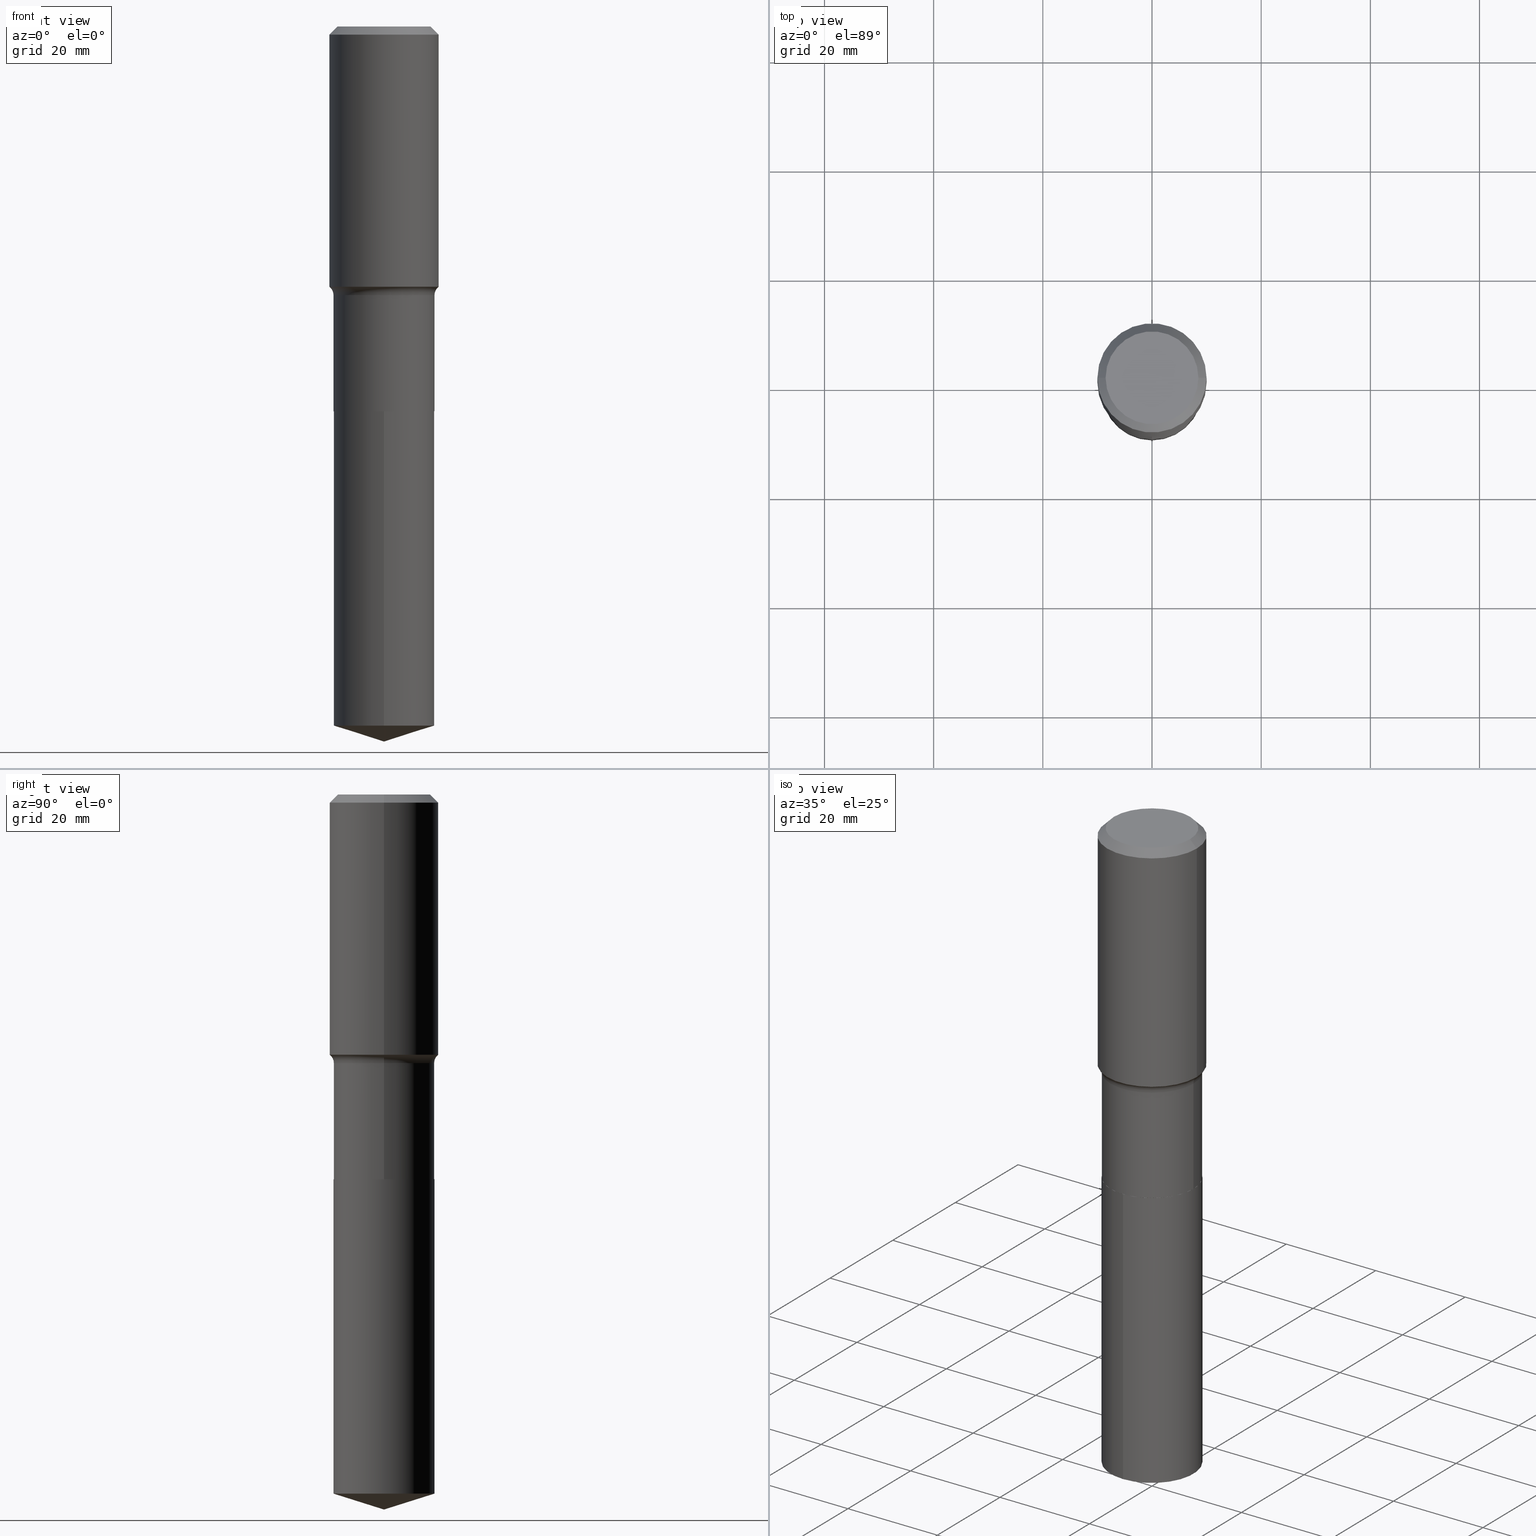
[diagram: canonical four-view strip — front | top / right | iso, engineering-drawing reading convention]
A machine part, canonical four-view strip (front | top / right | iso — engineering-drawing reading convention). The complete STEP part file that produces these views, byte-faithful:
ISO-10303-21;
HEADER;
FILE_DESCRIPTION (( 'STEP AP203' ),
    '1' );
FILE_NAME ('63209.STEP',
    '2024-04-19T15:06:39',
    ( '' ),
    ( '' ),
    'SwSTEP 2.0',
    'SolidWorks 2023',
    '' );
FILE_SCHEMA (( 'CONFIG_CONTROL_DESIGN' ));
ENDSEC;

DATA;
#1 = DIRECTION ( 'NONE',  ( -2.445873502339336509E-29, 3.490901790916456848E-15, 1.000000000000000000 ) ) ;
#2 = LINE ( 'NONE', #379, #159 ) ;
#3 = APPROVAL_PERSON_ORGANIZATION ( #92, #242, #423 ) ;
#4 = AXIS2_PLACEMENT_3D ( 'NONE', #241, #344, #254 ) ;
#5 = CIRCLE ( 'NONE', #356, 0.3641499999999999737 ) ;
#6 = CARTESIAN_POINT ( 'NONE',  ( -0.3346450000000000258, 2.439908260507010921E-15, 4.096137381431419798E-18 ) ) ;
#7 = FACE_OUTER_BOUND ( 'NONE', #147, .T. ) ;
#8 = ADVANCED_FACE ( 'NONE', ( #302 ), #462, .T. ) ;
#9 = CARTESIAN_POINT ( 'NONE',  ( 6.787643218447464969E-29, -9.690955604093032420E-15, -2.775599999999999845 ) ) ;
#10 = CARTESIAN_POINT ( 'NONE',  ( 6.787643218447464969E-29, -9.690955604093032420E-15, -2.775599999999999845 ) ) ;
#11 = EDGE_CURVE ( 'NONE', #316, #181, #106, .T. ) ;
#12 = LOCAL_TIME ( 11, 6, 39.00000000000000000, #411 ) ;
#13 = ORIENTED_EDGE ( 'NONE', *, *, #386, .T. ) ;
#14 = DIRECTION ( 'NONE',  ( -2.445873502339336509E-29, 3.490901790916456848E-15, 1.000000000000000000 ) ) ;
#15 = DIRECTION ( 'NONE',  ( 1.000000000000000000, -6.982962677686267499E-15, 0.000000000000000000 ) ) ;
#16 = EDGE_CURVE ( 'NONE', #447, #138, #183, .T. ) ;
#17 = CARTESIAN_POINT ( 'NONE',  ( -0.3641500000000000847, -5.640583550847350202E-15, -2.775099999999999678 ) ) ;
#18 = CARTESIAN_POINT ( 'NONE',  ( 1.444171603492640671E-30, -2.061894304653831493E-16, -0.05905500000000033639 ) ) ;
#19 = DIRECTION ( 'NONE',  ( -1.000000000000000000, 6.982962677686265922E-15, -4.876176775795935793E-29 ) ) ;
#20 = CARTESIAN_POINT ( 'NONE',  ( 4.739563093267412621E-29, -6.766839982811899557E-15, -1.938099999999999712 ) ) ;
#21 = ORIENTED_EDGE ( 'NONE', *, *, #435, .F. ) ;
#22 = CIRCLE ( 'NONE', #69, 0.3937000000000000499 ) ;
#23 = ORIENTED_EDGE ( 'NONE', *, *, #413, .T. ) ;
#24 = APPLICATION_PROTOCOL_DEFINITION ( 'international standard', 'config_control_design', 1994, #118 ) ;
#25 = CARTESIAN_POINT ( 'NONE',  ( 6.786420484044372168E-29, -9.689209863423613283E-15, -2.775099999999999678 ) ) ;
#26 = ORIENTED_EDGE ( 'NONE', *, *, #193, .F. ) ;
#27 = PERSON_AND_ORGANIZATION_ROLE ( 'creator' ) ;
#28 = VERTEX_POINT ( 'NONE', #291 ) ;
#29 = CIRCLE ( 'NONE', #246, 0.3641500000000000847 ) ;
#30 = APPROVAL_PERSON_ORGANIZATION ( #73, #370, #402 ) ;
#31 = SHAPE_DEFINITION_REPRESENTATION ( #433, #198 ) ;
#32 = ORIENTED_EDGE ( 'NONE', *, *, #264, .T. ) ;
#33 = CC_DESIGN_PERSON_AND_ORGANIZATION_ASSIGNMENT ( #145, #27, ( #247 ) ) ;
#34 = DIRECTION ( 'NONE',  ( 1.000000000000000000, -6.982962677686265922E-15, 4.883557194083112901E-29 ) ) ;
#35 = ORIENTED_EDGE ( 'NONE', *, *, #95, .T. ) ;
#36 = EDGE_LOOP ( 'NONE', ( #270, #122 ) ) ;
#37 = AXIS2_PLACEMENT_3D ( 'NONE', #155, #39, #197 ) ;
#38 = CARTESIAN_POINT ( 'NONE',  ( 4.590077173864083057E-29, -6.553413707777653647E-15, -1.876972285336354629 ) ) ;
#39 = DIRECTION ( 'NONE',  ( 2.445468806185136597E-29, -3.491481338843145583E-15, -1.000000000000000000 ) ) ;
#40 = DIRECTION ( 'NONE',  ( -6.982962677686267499E-15, -1.000000000000000000, 3.000794171263779658E-15 ) ) ;
#41 = AXIS2_PLACEMENT_3D ( 'NONE', #374, #414, #337 ) ;
#42 = TOROIDAL_SURFACE ( 'NONE', #120, 0.4421500000000000985, 0.07800000000000002764 ) ;
#43 = CARTESIAN_POINT ( 'NONE',  ( 6.787643218447464969E-29, -9.690955604093032420E-15, -2.775599999999999845 ) ) ;
#44 = PRODUCT_RELATED_PRODUCT_CATEGORY ( 'detail', '', ( #165 ) ) ;
#45 = CARTESIAN_POINT ( 'NONE',  ( 6.787643218447464969E-29, -9.690955604093032420E-15, -2.775599999999999845 ) ) ;
#46 = DIRECTION ( 'NONE',  ( -2.445468806185136597E-29, 3.491481338843145583E-15, 1.000000000000000000 ) ) ;
#47 = VECTOR ( 'NONE', #89, 39.37007874015748854 ) ;
#48 = AXIS2_PLACEMENT_3D ( 'NONE', #57, #172, #54 ) ;
#49 = AXIS2_PLACEMENT_3D ( 'NONE', #347, #474, #56 ) ;
#50 = DIRECTION ( 'NONE',  ( 2.438088387897960049E-29, -3.491481338843145188E-15, -1.000000000000000000 ) ) ;
#51 = DIRECTION ( 'NONE',  ( 1.000000000000000000, -6.982962677686266711E-15, 4.876176775795935793E-29 ) ) ;
#52 = ORIENTED_EDGE ( 'NONE', *, *, #275, .T. ) ;
#53 = DIRECTION ( 'NONE',  ( -2.445468806185136597E-29, 3.491481338843145583E-15, 1.000000000000000000 ) ) ;
#54 = DIRECTION ( 'NONE',  ( -6.982962677686267499E-15, -1.000000000000000000, 3.000794171263779658E-15 ) ) ;
#55 = EDGE_LOOP ( 'NONE', ( #487, #228, #123, #438 ) ) ;
#56 = DIRECTION ( 'NONE',  ( -6.982962677686265922E-15, -1.000000000000000000, 3.500519750498706404E-15 ) ) ;
#57 = CARTESIAN_POINT ( 'NONE',  ( 6.787643218447464969E-29, -9.690955604093032420E-15, -2.775599999999999845 ) ) ;
#58 = VERTEX_POINT ( 'NONE', #453 ) ;
#59 = DIRECTION ( 'NONE',  ( -2.445468806185136597E-29, 3.491481338843145583E-15, 1.000000000000000000 ) ) ;
#60 = DIRECTION ( 'NONE',  ( 1.000000000000000000, -6.982962677686255667E-15, 0.000000000000000000 ) ) ;
#61 = CC_DESIGN_DATE_AND_TIME_ASSIGNMENT ( #360, #408, ( #292 ) ) ;
#62 = VERTEX_POINT ( 'NONE', #164 ) ;
#63 = COORDINATED_UNIVERSAL_TIME_OFFSET ( 5, 0, .BEHIND. ) ;
#64 = DIRECTION ( 'NONE',  ( -0.7071067811865453523, 2.468850131082234184E-15, -0.7071067811865496822 ) ) ;
#65 = ORIENTED_EDGE ( 'NONE', *, *, #68, .F. ) ;
#66 = COORDINATED_UNIVERSAL_TIME_OFFSET ( 5, 0, .BEHIND. ) ;
#67 = ORIENTED_EDGE ( 'NONE', *, *, #386, .F. ) ;
#68 = EDGE_CURVE ( 'NONE', #440, #186, #109, .T. ) ;
#69 = AXIS2_PLACEMENT_3D ( 'NONE', #18, #284, #93 ) ;
#70 = CALENDAR_DATE ( 2024, 19, 4 ) ;
#71 = CARTESIAN_POINT ( 'NONE',  ( 6.787643218447464969E-29, -9.690955604093032420E-15, -2.775599999999999845 ) ) ;
#72 = DIRECTION ( 'NONE',  ( 1.000000000000000000, -6.982962677686269866E-15, 0.000000000000000000 ) ) ;
#73 = PERSON_AND_ORGANIZATION ( #369, #274 ) ;
#74 = EDGE_CURVE ( 'NONE', #447, #440, #2, .T. ) ;
#75 = DIRECTION ( 'NONE',  ( -0.7071067811864509833, 7.493145998870005484E-15, 0.7071067811866440511 ) ) ;
#76 = LOCAL_TIME ( 11, 6, 39.00000000000000000, #191 ) ;
#77 = CC_DESIGN_DATE_AND_TIME_ASSIGNMENT ( #229, #444, ( #464 ) ) ;
#78 = FACE_OUTER_BOUND ( 'NONE', #221, .T. ) ;
#79 = DIRECTION ( 'NONE',  ( -2.438088387897960049E-29, 3.491481338843145188E-15, 1.000000000000000000 ) ) ;
#80 = DIRECTION ( 'NONE',  ( 0.7071067811864509833, -2.468850131081245741E-15, 0.7071067811866440511 ) ) ;
#81 = DIRECTION ( 'NONE',  ( -2.445873502339336229E-29, 3.490901790916456454E-15, 1.000000000000000000 ) ) ;
#82 = EDGE_CURVE ( 'NONE', #58, #62, #276, .T. ) ;
#83 = CIRCLE ( 'NONE', #353, 0.3641500000000000847 ) ;
#84 = AXIS2_PLACEMENT_3D ( 'NONE', #439, #14, #355 ) ;
#85 = CARTESIAN_POINT ( 'NONE',  ( 0.000000000000000000, 0.000000000000000000, 0.000000000000000000 ) ) ;
#86 = EDGE_LOOP ( 'NONE', ( #479, #401 ) ) ;
#87 = CARTESIAN_POINT ( 'NONE',  ( -0.3937000000000001054, 2.797406750687515181E-15, -1.936584745033357016E-29 ) ) ;
#88 = VECTOR ( 'NONE', #129, 39.37007874015748143 ) ;
#89 = DIRECTION ( 'NONE',  ( -6.659769872151631300E-15, -0.9537169507482265995, 0.3007057995042740073 ) ) ;
#90 = CIRCLE ( 'NONE', #441, 0.3346450000000000258 ) ;
#91 = ORIENTED_EDGE ( 'NONE', *, *, #340, .F. ) ;
#92 = PERSON_AND_ORGANIZATION ( #369, #274 ) ;
#93 = DIRECTION ( 'NONE',  ( 1.000000000000000000, -6.982962677686265922E-15, 0.000000000000000000 ) ) ;
#94 = ORIENTED_EDGE ( 'NONE', *, *, #125, .T. ) ;
#95 = EDGE_CURVE ( 'NONE', #138, #443, #339, .T. ) ;
#96 = ORIENTED_EDGE ( 'NONE', *, *, #476, .T. ) ;
#97 = LOCAL_TIME ( 11, 6, 39.00000000000000000, #66 ) ;
#98 = FACE_OUTER_BOUND ( 'NONE', #466, .T. ) ;
#99 = ORIENTED_EDGE ( 'NONE', *, *, #95, .F. ) ;
#100 = VERTEX_POINT ( 'NONE', #163 ) ;
#101 = APPROVAL_DATE_TIME ( #297, #370 ) ;
#102 = ORIENTED_EDGE ( 'NONE', *, *, #413, .F. ) ;
#103 = CONICAL_SURFACE ( 'NONE', #378, 0.3636500000000000288, 0.7853981633973118326 ) ;
#104 =( GEOMETRIC_REPRESENTATION_CONTEXT ( 3 ) GLOBAL_UNCERTAINTY_ASSIGNED_CONTEXT ( ( #342 ) ) GLOBAL_UNIT_ASSIGNED_CONTEXT ( ( #392, #314, #322 ) ) REPRESENTATION_CONTEXT ( 'NONE', 'WORKASPACE' ) );
#105 = CALENDAR_DATE ( 2024, 19, 4 ) ;
#106 = LINE ( 'NONE', #267, #306 ) ;
#107 = EDGE_CURVE ( 'NONE', #422, #352, #311, .T. ) ;
#108 = DIRECTION ( 'NONE',  ( -2.445873502339336509E-29, 3.490901790916456848E-15, 1.000000000000000000 ) ) ;
#109 = LINE ( 'NONE', #492, #119 ) ;
#110 = CARTESIAN_POINT ( 'NONE',  ( 0.3636500000000000288, -1.223030998183364539E-14, -2.775599999999999845 ) ) ;
#111 = AXIS2_PLACEMENT_3D ( 'NONE', #71, #412, #72 ) ;
#112 = AXIS2_PLACEMENT_3D ( 'NONE', #465, #53, #280 ) ;
#113 = EDGE_CURVE ( 'NONE', #138, #447, #273, .T. ) ;
#114 = FACE_OUTER_BOUND ( 'NONE', #263, .T. ) ;
#115 = DIRECTION ( 'NONE',  ( -2.445468806185136877E-29, 3.491481338843145188E-15, 1.000000000000000000 ) ) ;
#116 = ADVANCED_FACE ( 'NONE', ( #454 ), #278, .T. ) ;
#117 = DIRECTION ( 'NONE',  ( -2.445468806185136597E-29, 3.491481338843145583E-15, 1.000000000000000000 ) ) ;
#118 = APPLICATION_CONTEXT ( 'configuration controlled 3d designs of mechanical parts and assemblies' ) ;
#119 = VECTOR ( 'NONE', #115, 39.37007874015748143 ) ;
#120 = AXIS2_PLACEMENT_3D ( 'NONE', #320, #134, #34 ) ;
#121 = CC_DESIGN_APPROVAL ( #242, ( #464 ) ) ;
#122 = ORIENTED_EDGE ( 'NONE', *, *, #16, .F. ) ;
#123 = ORIENTED_EDGE ( 'NONE', *, *, #82, .T. ) ;
#124 = FACE_OUTER_BOUND ( 'NONE', #86, .T. ) ;
#125 = EDGE_CURVE ( 'NONE', #28, #316, #448, .T. ) ;
#126 = ORIENTED_EDGE ( 'NONE', *, *, #452, .F. ) ;
#127 = DIRECTION ( 'NONE',  ( -2.445468806185136597E-29, 3.491481338843145583E-15, 1.000000000000000000 ) ) ;
#128 = VECTOR ( 'NONE', #80, 39.37007874015748143 ) ;
#129 = DIRECTION ( 'NONE',  ( 0.7071067811865453523, -7.319954787623248157E-15, -0.7071067811865496822 ) ) ;
#130 = AXIS2_PLACEMENT_3D ( 'NONE', #286, #178, #432 ) ;
#131 = CARTESIAN_POINT ( 'NONE',  ( 1.444171603492640671E-30, -2.061894304653831493E-16, -0.05905500000000033639 ) ) ;
#132 = VERTEX_POINT ( 'NONE', #231 ) ;
#133 = CYLINDRICAL_SURFACE ( 'NONE', #112, 0.3641499999999999737 ) ;
#134 = DIRECTION ( 'NONE',  ( -2.445468806185136597E-29, 3.491481338843145583E-15, 1.000000000000000000 ) ) ;
#135 = ORIENTED_EDGE ( 'NONE', *, *, #264, .F. ) ;
#136 = ADVANCED_FACE ( 'NONE', ( #196 ), #103, .T. ) ;
#137 = CARTESIAN_POINT ( 'NONE',  ( 2.587441372270528886E-15, 0.3641499999999824877, -5.042683946029719699 ) ) ;
#138 = VERTEX_POINT ( 'NONE', #110 ) ;
#139 = APPROVAL_STATUS ( 'not_yet_approved' ) ;
#140 = DIRECTION ( 'NONE',  ( -2.445873502339336509E-29, 3.490901790916456848E-15, 1.000000000000000000 ) ) ;
#141 = CONICAL_SURFACE ( 'NONE', #41, 0.3937000000000000499, 0.7853981633974452814 ) ;
#142 = AXIS2_PLACEMENT_3D ( 'NONE', #131, #170, #395 ) ;
#143 = EDGE_LOOP ( 'NONE', ( #323, #279, #67, #404 ) ) ;
#144 = AXIS2_PLACEMENT_3D ( 'NONE', #161, #79, #456 ) ;
#145 = PERSON_AND_ORGANIZATION ( #369, #274 ) ;
#146 = APPLICATION_CONTEXT ( 'configuration controlled 3d designs of mechanical parts and assemblies' ) ;
#147 = EDGE_LOOP ( 'NONE', ( #333, #194, #102 ) ) ;
#148 = ADVANCED_FACE ( 'NONE', ( #271 ), #141, .T. ) ;
#149 = ORIENTED_EDGE ( 'NONE', *, *, #113, .T. ) ;
#150 = APPROVAL_DATE_TIME ( #259, #242 ) ;
#151 = VERTEX_POINT ( 'NONE', #6 ) ;
#152 = EDGE_CURVE ( 'NONE', #352, #62, #204, .T. ) ;
#153 = CC_DESIGN_SECURITY_CLASSIFICATION ( #292, ( #247 ) ) ;
#154 = PERSON_AND_ORGANIZATION_ROLE ( 'design_supplier' ) ;
#155 = CARTESIAN_POINT ( 'NONE',  ( 1.444171603492640671E-30, -2.061894304653831493E-16, -0.05905500000000033639 ) ) ;
#156 = EDGE_CURVE ( 'NONE', #443, #132, #420, .T. ) ;
#157 = CARTESIAN_POINT ( 'NONE',  ( 0.3641499999999999737, -2.542845859079454001E-15, 1.775659772906089967E-29 ) ) ;
#158 = DIRECTION ( 'NONE',  ( 1.000000000000000000, -6.982962677686266711E-15, 4.876176775795935793E-29 ) ) ;
#159 = VECTOR ( 'NONE', #75, 39.37007874015748143 ) ;
#160 = VECTOR ( 'NONE', #64, 39.37007874015748143 ) ;
#161 = CARTESIAN_POINT ( 'NONE',  ( 6.787643218447464969E-29, -9.690955604093032420E-15, -2.775599999999999845 ) ) ;
#162 = CC_DESIGN_PERSON_AND_ORGANIZATION_ASSIGNMENT ( #222, #226, ( #464 ) ) ;
#163 = CARTESIAN_POINT ( 'NONE',  ( -0.3937000000000000499, -5.823948184340036238E-16, -0.05905500000000033639 ) ) ;
#164 = CARTESIAN_POINT ( 'NONE',  ( -2.542845859079385764E-15, -0.3641500000000096882, -2.775599999999998513 ) ) ;
#165 = PRODUCT ( '63209', '63209', '', ( #431 ) ) ;
#166 = LINE ( 'NONE', #463, #47 ) ;
#167 = ADVANCED_FACE ( 'NONE', ( #78 ), #305, .F. ) ;
#168 = CARTESIAN_POINT ( 'NONE',  ( -1.001697619218025096E-46, 1.430158722866394644E-32, 4.096137381448122233E-18 ) ) ;
#169 = VECTOR ( 'NONE', #171, 39.37007874015748143 ) ;
#170 = DIRECTION ( 'NONE',  ( -2.445468806185136597E-29, 3.491481338843145583E-15, 1.000000000000000000 ) ) ;
#171 = DIRECTION ( 'NONE',  ( -2.445468806185136877E-29, 3.491481338843145188E-15, 1.000000000000000000 ) ) ;
#172 = DIRECTION ( 'NONE',  ( -2.445873502339336509E-29, 3.490901790916456848E-15, 1.000000000000000000 ) ) ;
#173 = ORIENTED_EDGE ( 'NONE', *, *, #82, .F. ) ;
#174 = CARTESIAN_POINT ( 'NONE',  ( -0.3636500000000000288, -7.104417718327316688E-15, -2.775599999999999845 ) ) ;
#175 = CARTESIAN_POINT ( 'NONE',  ( 4.739563093267412621E-29, -6.766839982811899557E-15, -1.938099999999999712 ) ) ;
#176 = EDGE_CURVE ( 'NONE', #443, #440, #83, .T. ) ;
#177 = LOCAL_TIME ( 11, 6, 39.00000000000000000, #265 ) ;
#178 = DIRECTION ( 'NONE',  ( 7.105427357601001859E-15, 1.000000000000000000, -3.491481338843145583E-15 ) ) ;
#179 = ORIENTED_EDGE ( 'NONE', *, *, #107, .T. ) ;
#180 = LINE ( 'NONE', #213, #88 ) ;
#181 = VERTEX_POINT ( 'NONE', #335 ) ;
#182 = ADVANCED_FACE ( 'NONE', ( #114 ), #256, .T. ) ;
#183 = CIRCLE ( 'NONE', #111, 0.3636500000000000288 ) ;
#184 = AXIS2_PLACEMENT_3D ( 'NONE', #393, #478, #51 ) ;
#185 = CIRCLE ( 'NONE', #482, 0.3641499999999999737 ) ;
#186 = VERTEX_POINT ( 'NONE', #303 ) ;
#187 = TOROIDAL_SURFACE ( 'NONE', #367, 0.4421500000000000985, 0.07800000000000002764 ) ;
#188 = ORIENTED_EDGE ( 'NONE', *, *, #331, .T. ) ;
#189 = CARTESIAN_POINT ( 'NONE',  ( 1.233264376962045651E-28, -1.760512301144612665E-14, -5.042683946029718811 ) ) ;
#190 = EDGE_LOOP ( 'NONE', ( #149, #434, #293, #99 ) ) ;
#191 = COORDINATED_UNIVERSAL_TIME_OFFSET ( 5, 0, .BEHIND. ) ;
#192 = PLANE ( 'NONE',  #144 ) ;
#193 = EDGE_CURVE ( 'NONE', #366, #422, #200, .T. ) ;
#194 = ORIENTED_EDGE ( 'NONE', *, *, #193, .T. ) ;
#195 = AXIS2_PLACEMENT_3D ( 'NONE', #45, #272, #416 ) ;
#196 = FACE_OUTER_BOUND ( 'NONE', #283, .T. ) ;
#197 = DIRECTION ( 'NONE',  ( -1.000000000000000000, 6.982962677686265922E-15, 0.000000000000000000 ) ) ;
#198 = ADVANCED_BREP_SHAPE_REPRESENTATION ( '63209', ( #373, #382, #458 ), #104 ) ;
#199 = ADVANCED_FACE ( 'NONE', ( #419 ), #343, .T. ) ;
#200 = LINE ( 'NONE', #460, #480 ) ;
#201 = CC_DESIGN_APPROVAL ( #370, ( #292 ) ) ;
#202 = DIRECTION ( 'NONE',  ( 1.000000000000000000, -6.982962677686269866E-15, 0.000000000000000000 ) ) ;
#203 = DIRECTION ( 'NONE',  ( -2.445873502339336509E-29, 3.490901790916456848E-15, 1.000000000000000000 ) ) ;
#204 = CIRCLE ( 'NONE', #300, 0.3641499999999999737 ) ;
#205 = DIRECTION ( 'NONE',  ( 1.000000000000000000, -6.982962677686265922E-15, 4.883557194083112901E-29 ) ) ;
#206 = DIRECTION ( 'NONE',  ( -2.445468806185136597E-29, 3.491481338843145583E-15, 1.000000000000000000 ) ) ;
#207 = ORIENTED_EDGE ( 'NONE', *, *, #383, .T. ) ;
#208 = EDGE_CURVE ( 'NONE', #366, #58, #166, .T. ) ;
#209 = FACE_OUTER_BOUND ( 'NONE', #365, .T. ) ;
#210 = EDGE_LOOP ( 'NONE', ( #23, #179, #135, #173 ) ) ;
#211 = DIRECTION ( 'NONE',  ( 1.000000000000000000, -6.982962677686267499E-15, 4.876152824003125403E-29 ) ) ;
#212 = AXIS2_PLACEMENT_3D ( 'NONE', #43, #307, #202 ) ;
#213 = CARTESIAN_POINT ( 'NONE',  ( 0.3937000000000000499, -2.907167492188035412E-15, -0.05905500000000033639 ) ) ;
#214 = VERTEX_POINT ( 'NONE', #348 ) ;
#215 = DIRECTION ( 'NONE',  ( 0.000000000000000000, 0.000000000000000000, 1.000000000000000000 ) ) ;
#216 = DIRECTION ( 'NONE',  ( 1.000000000000000000, -6.982962677686266711E-15, 0.000000000000000000 ) ) ;
#217 = CARTESIAN_POINT ( 'NONE',  ( -8.368076306189490819E-28, 1.194311438026607249E-13, 34.21257874015748257 ) ) ;
#218 = EDGE_CURVE ( 'NONE', #422, #58, #387, .T. ) ;
#219 = ORIENTED_EDGE ( 'NONE', *, *, #11, .T. ) ;
#220 = PERSON_AND_ORGANIZATION ( #369, #274 ) ;
#221 = EDGE_LOOP ( 'NONE', ( #32, #350 ) ) ;
#222 = PERSON_AND_ORGANIZATION ( #369, #274 ) ;
#223 = CIRCLE ( 'NONE', #318, 0.07800000000000002764 ) ;
#224 = EDGE_LOOP ( 'NONE', ( #225, #126, #346, #361 ) ) ;
#225 = ORIENTED_EDGE ( 'NONE', *, *, #268, .F. ) ;
#226 = PERSON_AND_ORGANIZATION_ROLE ( 'creator' ) ;
#227 = CC_DESIGN_PERSON_AND_ORGANIZATION_ASSIGNMENT ( #269, #154, ( #247 ) ) ;
#228 = ORIENTED_EDGE ( 'NONE', *, *, #218, .T. ) ;
#229 = DATE_AND_TIME ( #328, #12 ) ;
#230 = DIRECTION ( 'NONE',  ( -2.445468806185136597E-29, 3.491481338843145583E-15, 1.000000000000000000 ) ) ;
#231 = CARTESIAN_POINT ( 'NONE',  ( 0.3641499999999999737, -9.309685841891353952E-15, -1.938099999999999712 ) ) ;
#232 = CIRCLE ( 'NONE', #409, 0.3346450000000000258 ) ;
#233 = CARTESIAN_POINT ( 'NONE',  ( 6.786420484044372168E-29, -9.689209863423613283E-15, -2.775099999999999678 ) ) ;
#234 = DIRECTION ( 'NONE',  ( -2.445468806185136597E-29, 3.491481338843145583E-15, 1.000000000000000000 ) ) ;
#235 = CC_DESIGN_PERSON_AND_ORGANIZATION_ASSIGNMENT ( #220, #294, ( #292 ) ) ;
#236 = CARTESIAN_POINT ( 'NONE',  ( 0.3937000000000002164, -9.302606113982739230E-15, -1.876972285336354629 ) ) ;
#237 = DIRECTION ( 'NONE',  ( -2.445468806185136597E-29, 3.491481338843145583E-15, 1.000000000000000000 ) ) ;
#238 = AXIS2_PLACEMENT_3D ( 'NONE', #217, #140, #260 ) ;
#239 = EDGE_CURVE ( 'NONE', #151, #100, #400, .T. ) ;
#240 = DIRECTION ( 'NONE',  ( -2.445468806185136877E-29, 3.491481338843145188E-15, 1.000000000000000000 ) ) ;
#241 = CARTESIAN_POINT ( 'NONE',  ( 0.000000000000000000, 0.000000000000000000, 0.000000000000000000 ) ) ;
#242 = APPROVAL ( #139, 'UNSPECIFIED' ) ;
#243 = PERSON_AND_ORGANIZATION_ROLE ( 'design_owner' ) ;
#244 = CLOSED_SHELL ( 'NONE', ( #199, #418, #282, #468, #167 ) ) ;
#245 = CARTESIAN_POINT ( 'NONE',  ( 4.590077173864083057E-29, -6.553413707777653647E-15, -1.876972285336354629 ) ) ;
#246 = AXIS2_PLACEMENT_3D ( 'NONE', #25, #289, #15 ) ;
#247 = PRODUCT_DEFINITION_FORMATION_WITH_SPECIFIED_SOURCE ( 'ANY', '', #165, .NOT_KNOWN. ) ;
#248 = FACE_OUTER_BOUND ( 'NONE', #384, .T. ) ;
#249 = LINE ( 'NONE', #87, #169 ) ;
#250 = ORIENTED_EDGE ( 'NONE', *, *, #275, .F. ) ;
#251 = ADVANCED_FACE ( 'NONE', ( #325 ), #397, .T. ) ;
#252 = FACE_OUTER_BOUND ( 'NONE', #143, .T. ) ;
#253 = EDGE_LOOP ( 'NONE', ( #21, #94, #219, #388 ) ) ;
#254 = DIRECTION ( 'NONE',  ( 1.000000000000000000, -6.982962677686267499E-15, 4.876176775795935793E-29 ) ) ;
#255 =( LENGTH_UNIT ( ) NAMED_UNIT ( * ) SI_UNIT ( $, .METRE. ) );
#256 = CONICAL_SURFACE ( 'NONE', #37, 0.3937000000000000499, 0.7853981633974452814 ) ;
#257 = DIRECTION ( 'NONE',  ( -2.445873502339336509E-29, 3.490901790916456848E-15, 1.000000000000000000 ) ) ;
#258 = ORIENTED_EDGE ( 'NONE', *, *, #383, .F. ) ;
#259 = DATE_AND_TIME ( #105, #97 ) ;
#260 = DIRECTION ( 'NONE',  ( -6.982962677686265922E-15, -1.000000000000000000, 3.500519750498706404E-15 ) ) ;
#261 = EDGE_CURVE ( 'NONE', #440, #443, #29, .T. ) ;
#262 = ORIENTED_EDGE ( 'NONE', *, *, #435, .T. ) ;
#263 = EDGE_LOOP ( 'NONE', ( #91, #445, #188, #425 ) ) ;
#264 = EDGE_CURVE ( 'NONE', #62, #352, #329, .T. ) ;
#265 = COORDINATED_UNIVERSAL_TIME_OFFSET ( 5, 0, .BEHIND. ) ;
#266 = AXIS2_PLACEMENT_3D ( 'NONE', #38, #237, #341 ) ;
#267 = CARTESIAN_POINT ( 'NONE',  ( 0.3937000000000001054, -2.749192406205084005E-15, 1.919750796630860452E-29 ) ) ;
#268 = EDGE_CURVE ( 'NONE', #214, #181, #180, .T. ) ;
#269 = PERSON_AND_ORGANIZATION ( #369, #274 ) ;
#270 = ORIENTED_EDGE ( 'NONE', *, *, #113, .F. ) ;
#271 = FACE_OUTER_BOUND ( 'NONE', #224, .T. ) ;
#272 = DIRECTION ( 'NONE',  ( 2.445873502339336229E-29, -3.490901790916456454E-15, -1.000000000000000000 ) ) ;
#273 = CIRCLE ( 'NONE', #212, 0.3636500000000000288 ) ;
#274 = ORGANIZATION ( 'UNSPECIFIED', 'UNSPECIFIED', '' ) ;
#275 = EDGE_CURVE ( 'NONE', #28, #186, #308, .T. ) ;
#276 = LINE ( 'NONE', #372, #427 ) ;
#277 = DIRECTION ( 'NONE',  ( 6.776566513254256560E-15, 0.9537169507482287090, 0.3007057995042674015 ) ) ;
#278 = CYLINDRICAL_SURFACE ( 'NONE', #407, 0.3937000000000001054 ) ;
#279 = ORIENTED_EDGE ( 'NONE', *, *, #68, .T. ) ;
#280 = DIRECTION ( 'NONE',  ( 1.000000000000000000, -6.982962677686267499E-15, 4.876176775795935793E-29 ) ) ;
#281 = CARTESIAN_POINT ( 'NONE',  ( 1.233264376962045651E-28, -1.760512301144612665E-14, -5.042683946029718811 ) ) ;
#282 = ADVANCED_FACE ( 'NONE', ( #98 ), #317, .T. ) ;
#283 = EDGE_LOOP ( 'NONE', ( #368, #391, #35, #490 ) ) ;
#284 = DIRECTION ( 'NONE',  ( -2.445468806185136597E-29, 3.491481338843145583E-15, 1.000000000000000000 ) ) ;
#285 = APPLICATION_PROTOCOL_DEFINITION ( 'international standard', 'config_control_design', 1994, #146 ) ;
#286 = CARTESIAN_POINT ( 'NONE',  ( -0.4421500000000000985, -3.625175276648615491E-15, -1.938099999999999712 ) ) ;
#287 = ORIENTED_EDGE ( 'NONE', *, *, #331, .F. ) ;
#288 = CARTESIAN_POINT ( 'NONE',  ( -1.001697619218025096E-46, 1.430158722866394644E-32, 4.096137381448122233E-18 ) ) ;
#289 = DIRECTION ( 'NONE',  ( -2.445468806185136597E-29, 3.491481338843145583E-15, 1.000000000000000000 ) ) ;
#290 = DIRECTION ( 'NONE',  ( -2.445468806185136597E-29, 3.491481338843145583E-15, 1.000000000000000000 ) ) ;
#291 = CARTESIAN_POINT ( 'NONE',  ( -0.3937000000000002164, -3.756006957090138071E-15, -1.876972285336354629 ) ) ;
#292 = SECURITY_CLASSIFICATION ( '', '', #484 ) ;
#293 = ORIENTED_EDGE ( 'NONE', *, *, #176, .F. ) ;
#294 = PERSON_AND_ORGANIZATION_ROLE ( 'classification_officer' ) ;
#295 = FACE_OUTER_BOUND ( 'NONE', #36, .T. ) ;
#296 = DIRECTION ( 'NONE',  ( -6.982962677686267499E-15, -1.000000000000000000, 3.000794171263779658E-15 ) ) ;
#297 = DATE_AND_TIME ( #70, #76 ) ;
#298 = ADVANCED_FACE ( 'NONE', ( #209 ), #42, .F. ) ;
#299 = ORIENTED_EDGE ( 'NONE', *, *, #218, .F. ) ;
#300 = AXIS2_PLACEMENT_3D ( 'NONE', #9, #1, #40 ) ;
#301 = AXIS2_PLACEMENT_3D ( 'NONE', #351, #50, #19 ) ;
#302 = FACE_OUTER_BOUND ( 'NONE', #190, .T. ) ;
#303 = CARTESIAN_POINT ( 'NONE',  ( -0.3641499999999999737, -5.640583550847350991E-15, -1.938099999999999712 ) ) ;
#304 = EDGE_CURVE ( 'NONE', #186, #132, #5, .T. ) ;
#305 = PLANE ( 'NONE',  #195 ) ;
#306 = VECTOR ( 'NONE', #410, 39.37007874015748143 ) ;
#307 = DIRECTION ( 'NONE',  ( -2.445468806185136597E-29, 3.491481338843145583E-15, 1.000000000000000000 ) ) ;
#308 = CIRCLE ( 'NONE', #130, 0.07800000000000002764 ) ;
#309 = LOCAL_TIME ( 11, 6, 39.00000000000000000, #63 ) ;
#310 = DIRECTION ( 'NONE',  ( 1.000000000000000000, -6.982962677686269866E-15, 0.000000000000000000 ) ) ;
#311 = LINE ( 'NONE', #375, #481 ) ;
#312 = ADVANCED_FACE ( 'NONE', ( #295 ), #192, .F. ) ;
#313 = DIRECTION ( 'NONE',  ( -6.982962677686267499E-15, -1.000000000000000000, 3.000794171263779658E-15 ) ) ;
#314 =( NAMED_UNIT ( * ) PLANE_ANGLE_UNIT ( ) SI_UNIT ( $, .RADIAN. ) );
#315 = DIRECTION ( 'NONE',  ( -6.982962677686266711E-15, -1.000000000000000000, 3.491481338843145583E-15 ) ) ;
#316 = VERTEX_POINT ( 'NONE', #236 ) ;
#317 = CONICAL_SURFACE ( 'NONE', #238, 124.8659371009149908, 1.265363707695891460 ) ;
#318 = AXIS2_PLACEMENT_3D ( 'NONE', #472, #315, #60 ) ;
#319 = FACE_OUTER_BOUND ( 'NONE', #55, .T. ) ;
#320 = CARTESIAN_POINT ( 'NONE',  ( 4.739563093267412621E-29, -6.766839982811899557E-15, -1.938099999999999712 ) ) ;
#321 = ORIENTED_EDGE ( 'NONE', *, *, #125, .F. ) ;
#322 =( NAMED_UNIT ( * ) SI_UNIT ( $, .STERADIAN. ) SOLID_ANGLE_UNIT ( ) );
#323 = ORIENTED_EDGE ( 'NONE', *, *, #176, .T. ) ;
#324 = ADVANCED_FACE ( 'NONE', ( #424 ), #421, .T. ) ;
#325 = FACE_OUTER_BOUND ( 'NONE', #253, .T. ) ;
#326 = EDGE_LOOP ( 'NONE', ( #65, #429, #359, #394 ) ) ;
#327 = ADVANCED_FACE ( 'NONE', ( #248 ), #187, .F. ) ;
#328 = CALENDAR_DATE ( 2024, 19, 4 ) ;
#329 = CIRCLE ( 'NONE', #48, 0.3641499999999999737 ) ;
#330 = CARTESIAN_POINT ( 'NONE',  ( 6.787643218447464969E-29, -9.690955604093032420E-15, -2.775599999999999845 ) ) ;
#331 = EDGE_CURVE ( 'NONE', #181, #100, #22, .T. ) ;
#332 = ORIENTED_EDGE ( 'NONE', *, *, #476, .F. ) ;
#333 = ORIENTED_EDGE ( 'NONE', *, *, #208, .F. ) ;
#334 = DATE_AND_TIME ( #446, #309 ) ;
#335 = CARTESIAN_POINT ( 'NONE',  ( 0.3937000000000000499, -2.955381836670466588E-15, -0.05905500000000033639 ) ) ;
#336 = DIRECTION ( 'NONE',  ( 1.000000000000000000, -6.982962677686267499E-15, 0.000000000000000000 ) ) ;
#337 = DIRECTION ( 'NONE',  ( -1.000000000000000000, 6.982962677686265922E-15, 0.000000000000000000 ) ) ;
#338 = DIRECTION ( 'NONE',  ( 1.000000000000000000, -6.982962677686267499E-15, 0.000000000000000000 ) ) ;
#339 = LINE ( 'NONE', #417, #128 ) ;
#340 = EDGE_CURVE ( 'NONE', #214, #151, #90, .T. ) ;
#341 = DIRECTION ( 'NONE',  ( 1.000000000000000000, -6.982962677686266711E-15, 0.000000000000000000 ) ) ;
#342 = UNCERTAINTY_MEASURE_WITH_UNIT (LENGTH_MEASURE( 1.000000000000000082E-05 ), #392, 'distance_accuracy_value', 'NONE');
#343 = CYLINDRICAL_SURFACE ( 'NONE', #363, 0.3641499999999999737 ) ;
#344 = DIRECTION ( 'NONE',  ( -2.445468806185136597E-29, 3.491481338843145583E-15, 1.000000000000000000 ) ) ;
#345 = AXIS2_PLACEMENT_3D ( 'NONE', #330, #475, #451 ) ;
#346 = ORIENTED_EDGE ( 'NONE', *, *, #239, .T. ) ;
#347 = CARTESIAN_POINT ( 'NONE',  ( -8.368076306189490819E-28, 1.194311438026607249E-13, 34.21257874015748257 ) ) ;
#348 = CARTESIAN_POINT ( 'NONE',  ( 0.3346450000000000258, -2.601499422326145188E-15, 4.096137381465388580E-18 ) ) ;
#349 = ORIENTED_EDGE ( 'NONE', *, *, #208, .T. ) ;
#350 = ORIENTED_EDGE ( 'NONE', *, *, #152, .T. ) ;
#351 = CARTESIAN_POINT ( 'NONE',  ( -5.008488096090125481E-47, 7.150793614331973222E-33, 2.048068690724061116E-18 ) ) ;
#352 = VERTEX_POINT ( 'NONE', #403 ) ;
#353 = AXIS2_PLACEMENT_3D ( 'NONE', #233, #381, #338 ) ;
#354 = AXIS2_PLACEMENT_3D ( 'NONE', #245, #206, #216 ) ;
#355 = DIRECTION ( 'NONE',  ( -6.982962677686267499E-15, -1.000000000000000000, 3.000794171263779658E-15 ) ) ;
#356 = AXIS2_PLACEMENT_3D ( 'NONE', #175, #230, #336 ) ;
#357 = PERSON_AND_ORGANIZATION ( #369, #274 ) ;
#358 = DIRECTION ( 'NONE',  ( 1.000000000000000000, -6.982962677686267499E-15, 4.876152824003125403E-29 ) ) ;
#359 = ORIENTED_EDGE ( 'NONE', *, *, #156, .T. ) ;
#360 = DATE_AND_TIME ( #491, #177 ) ;
#361 = ORIENTED_EDGE ( 'NONE', *, *, #377, .T. ) ;
#362 = APPROVAL_STATUS ( 'not_yet_approved' ) ;
#363 = AXIS2_PLACEMENT_3D ( 'NONE', #10, #203, #313 ) ;
#364 = DIMENSIONAL_EXPONENTS ( 1.000000000000000000, 0.000000000000000000, 0.000000000000000000, 0.000000000000000000, 0.000000000000000000, 0.000000000000000000, 0.000000000000000000 ) ;
#365 = EDGE_LOOP ( 'NONE', ( #321, #52, #485, #332 ) ) ;
#366 = VERTEX_POINT ( 'NONE', #469 ) ;
#367 = AXIS2_PLACEMENT_3D ( 'NONE', #436, #127, #205 ) ;
#368 = ORIENTED_EDGE ( 'NONE', *, *, #74, .F. ) ;
#369 = PERSON ( 'UNSPECIFIED', 'UNSPECIFIED', 'UNSPECIFIED', ('UNSPECIFIED'), ('UNSPECIFIED'), ('UNSPECIFIED') ) ;
#370 = APPROVAL ( #362, 'UNSPECIFIED' ) ;
#371 = AXIS2_PLACEMENT_3D ( 'NONE', #20, #59, #467 ) ;
#372 = CARTESIAN_POINT ( 'NONE',  ( -2.542845859079385764E-15, -0.3641500000000096882, -2.775599999999998513 ) ) ;
#373 = MANIFOLD_SOLID_BREP ( 'Body-Move/Copy2[1]', #244 ) ;
#374 = CARTESIAN_POINT ( 'NONE',  ( 1.444171603492640671E-30, -2.061894304653831493E-16, -0.05905500000000033639 ) ) ;
#375 = CARTESIAN_POINT ( 'NONE',  ( 2.587441372270472088E-15, 0.3641499999999903148, -2.775600000000000733 ) ) ;
#376 = DESIGN_CONTEXT ( 'detailed design', #118, 'design' ) ;
#377 = EDGE_CURVE ( 'NONE', #100, #181, #471, .T. ) ;
#378 = AXIS2_PLACEMENT_3D ( 'NONE', #459, #117, #310 ) ;
#379 = CARTESIAN_POINT ( 'NONE',  ( -0.3636500000000000288, -7.107066945501427889E-15, -2.775599999999999845 ) ) ;
#380 = APPROVAL_PERSON_ORGANIZATION ( #405, #396, #488 ) ;
#381 = DIRECTION ( 'NONE',  ( -2.445468806185136597E-29, 3.491481338843145583E-15, 1.000000000000000000 ) ) ;
#382 = MANIFOLD_SOLID_BREP ( 'Body-Move/Copy2[2]', #455 ) ;
#383 = EDGE_CURVE ( 'NONE', #316, #28, #415, .T. ) ;
#384 = EDGE_LOOP ( 'NONE', ( #250, #258, #96, #13 ) ) ;
#385 = PLANE ( 'NONE',  #301 ) ;
#386 = EDGE_CURVE ( 'NONE', #132, #186, #430, .T. ) ;
#387 = CIRCLE ( 'NONE', #457, 0.3641499999999999737 ) ;
#388 = ORIENTED_EDGE ( 'NONE', *, *, #377, .F. ) ;
#389 = CC_DESIGN_APPROVAL ( #396, ( #247 ) ) ;
#390 = LENGTH_MEASURE_WITH_UNIT ( LENGTH_MEASURE( 0.02539999999999999897 ), #255 );
#391 = ORIENTED_EDGE ( 'NONE', *, *, #16, .T. ) ;
#392 =( CONVERSION_BASED_UNIT ( 'INCH', #390 ) LENGTH_UNIT ( ) NAMED_UNIT ( #364 ) );
#393 = CARTESIAN_POINT ( 'NONE',  ( 0.000000000000000000, 0.000000000000000000, 0.000000000000000000 ) ) ;
#394 = ORIENTED_EDGE ( 'NONE', *, *, #304, .F. ) ;
#395 = DIRECTION ( 'NONE',  ( 1.000000000000000000, -6.982962677686265922E-15, 0.000000000000000000 ) ) ;
#396 = APPROVAL ( #486, 'UNSPECIFIED' ) ;
#397 = CYLINDRICAL_SURFACE ( 'NONE', #184, 0.3937000000000001054 ) ;
#398 = VECTOR ( 'NONE', #240, 39.37007874015748143 ) ;
#399 = CYLINDRICAL_SURFACE ( 'NONE', #84, 0.3641499999999999737 ) ;
#400 = LINE ( 'NONE', #442, #160 ) ;
#401 = ORIENTED_EDGE ( 'NONE', *, *, #340, .T. ) ;
#402 = APPROVAL_ROLE ( '' ) ;
#403 = CARTESIAN_POINT ( 'NONE',  ( 2.587441372270528097E-15, 0.3641499999999903148, -2.775600000000000733 ) ) ;
#404 = ORIENTED_EDGE ( 'NONE', *, *, #156, .F. ) ;
#405 = PERSON_AND_ORGANIZATION ( #369, #274 ) ;
#406 = ORIENTED_EDGE ( 'NONE', *, *, #11, .F. ) ;
#407 = AXIS2_PLACEMENT_3D ( 'NONE', #85, #234, #158 ) ;
#408 = DATE_TIME_ROLE ( 'classification_date' ) ;
#409 = AXIS2_PLACEMENT_3D ( 'NONE', #288, #290, #211 ) ;
#410 = DIRECTION ( 'NONE',  ( -2.445468806185136877E-29, 3.491481338843145188E-15, 1.000000000000000000 ) ) ;
#411 = COORDINATED_UNIVERSAL_TIME_OFFSET ( 5, 0, .BEHIND. ) ;
#412 = DIRECTION ( 'NONE',  ( -2.445468806185136597E-29, 3.491481338843145583E-15, 1.000000000000000000 ) ) ;
#413 = EDGE_CURVE ( 'NONE', #58, #422, #185, .T. ) ;
#414 = DIRECTION ( 'NONE',  ( 2.445468806185136597E-29, -3.491481338843145583E-15, -1.000000000000000000 ) ) ;
#415 = CIRCLE ( 'NONE', #354, 0.3937000000000002164 ) ;
#416 = DIRECTION ( 'NONE',  ( 6.982962677686265922E-15, 1.000000000000000000, -3.490901790916456454E-15 ) ) ;
#417 = CARTESIAN_POINT ( 'NONE',  ( 0.3636500000000000288, -1.223030998183364539E-14, -2.775599999999999845 ) ) ;
#418 = ADVANCED_FACE ( 'NONE', ( #7 ), #450, .T. ) ;
#419 = FACE_OUTER_BOUND ( 'NONE', #210, .T. ) ;
#420 = LINE ( 'NONE', #157, #398 ) ;
#421 = CYLINDRICAL_SURFACE ( 'NONE', #4, 0.3641499999999999737 ) ;
#422 = VERTEX_POINT ( 'NONE', #137 ) ;
#423 = APPROVAL_ROLE ( '' ) ;
#424 = FACE_OUTER_BOUND ( 'NONE', #326, .T. ) ;
#425 = ORIENTED_EDGE ( 'NONE', *, *, #239, .F. ) ;
#426 = CARTESIAN_POINT ( 'NONE',  ( 0.3641500000000000847, -1.223205572250306768E-14, -2.775099999999999678 ) ) ;
#427 = VECTOR ( 'NONE', #81, 39.37007874015748143 ) ;
#428 = ADVANCED_FACE ( 'NONE', ( #124 ), #385, .F. ) ;
#429 = ORIENTED_EDGE ( 'NONE', *, *, #261, .T. ) ;
#430 = CIRCLE ( 'NONE', #371, 0.3641499999999999737 ) ;
#431 = MECHANICAL_CONTEXT ( 'NONE', #146, 'mechanical' ) ;
#432 = DIRECTION ( 'NONE',  ( -1.000000000000000000, 7.105427357601001859E-15, 0.000000000000000000 ) ) ;
#433 = PRODUCT_DEFINITION_SHAPE ( 'NONE', 'NONE',  #464 ) ;
#434 = ORIENTED_EDGE ( 'NONE', *, *, #74, .T. ) ;
#435 = EDGE_CURVE ( 'NONE', #28, #100, #249, .T. ) ;
#436 = CARTESIAN_POINT ( 'NONE',  ( 4.739563093267412621E-29, -6.766839982811899557E-15, -1.938099999999999712 ) ) ;
#437 = DIRECTION ( 'NONE',  ( 1.000000000000000000, 0.000000000000000000, 0.000000000000000000 ) ) ;
#438 = ORIENTED_EDGE ( 'NONE', *, *, #152, .F. ) ;
#439 = CARTESIAN_POINT ( 'NONE',  ( 6.787643218447464969E-29, -9.690955604093032420E-15, -2.775599999999999845 ) ) ;
#440 = VERTEX_POINT ( 'NONE', #17 ) ;
#441 = AXIS2_PLACEMENT_3D ( 'NONE', #168, #46, #358 ) ;
#442 = CARTESIAN_POINT ( 'NONE',  ( -0.3937000000000000499, 2.543002975739700240E-15, -0.05905500000000033639 ) ) ;
#443 = VERTEX_POINT ( 'NONE', #426 ) ;
#444 = DATE_TIME_ROLE ( 'creation_date' ) ;
#445 = ORIENTED_EDGE ( 'NONE', *, *, #268, .T. ) ;
#446 = CALENDAR_DATE ( 2024, 19, 4 ) ;
#447 = VERTEX_POINT ( 'NONE', #174 ) ;
#448 = CIRCLE ( 'NONE', #266, 0.3937000000000002164 ) ;
#449 = APPROVAL_DATE_TIME ( #334, #396 ) ;
#450 = CONICAL_SURFACE ( 'NONE', #49, 124.8659371009149908, 1.265363707695891460 ) ;
#451 = DIRECTION ( 'NONE',  ( 1.000000000000000000, -6.982962677686269866E-15, 0.000000000000000000 ) ) ;
#452 = EDGE_CURVE ( 'NONE', #151, #214, #232, .T. ) ;
#453 = CARTESIAN_POINT ( 'NONE',  ( -2.542845859079330938E-15, -0.3641500000000177373, -5.042683946029717923 ) ) ;
#454 = FACE_OUTER_BOUND ( 'NONE', #470, .T. ) ;
#455 = CLOSED_SHELL ( 'NONE', ( #8, #182, #116, #298, #483, #324, #327, #251, #148, #428, #312, #136 ) ) ;
#456 = DIRECTION ( 'NONE',  ( 1.000000000000000000, -6.982962677686265922E-15, 4.876176775795935793E-29 ) ) ;
#457 = AXIS2_PLACEMENT_3D ( 'NONE', #281, #257, #473 ) ;
#458 = AXIS2_PLACEMENT_3D ( 'NONE', #477, #215, #437 ) ;
#459 = CARTESIAN_POINT ( 'NONE',  ( 6.787643218447464969E-29, -9.690955604093032420E-15, -2.775599999999999845 ) ) ;
#460 = CARTESIAN_POINT ( 'NONE',  ( 1.261461228790057291E-28, -1.800432598665162108E-14, -5.157499999999999751 ) ) ;
#461 = DIRECTION ( 'NONE',  ( -2.445873502339336229E-29, 3.490901790916456454E-15, 1.000000000000000000 ) ) ;
#462 = CONICAL_SURFACE ( 'NONE', #345, 0.3636500000000000288, 0.7853981633973118326 ) ;
#463 = CARTESIAN_POINT ( 'NONE',  ( 1.261234603902393313E-28, -1.800754317310226114E-14, -5.157499999999999751 ) ) ;
#464 = PRODUCT_DEFINITION ( 'UNKNOWN', '', #247, #376 ) ;
#465 = CARTESIAN_POINT ( 'NONE',  ( 0.000000000000000000, 0.000000000000000000, 0.000000000000000000 ) ) ;
#466 = EDGE_LOOP ( 'NONE', ( #26, #349, #299 ) ) ;
#467 = DIRECTION ( 'NONE',  ( 1.000000000000000000, -6.982962677686267499E-15, 0.000000000000000000 ) ) ;
#468 = ADVANCED_FACE ( 'NONE', ( #319 ), #399, .T. ) ;
#469 = CARTESIAN_POINT ( 'NONE',  ( 1.261459258831512906E-28, -1.800432598665162739E-14, -5.157499999999999751 ) ) ;
#470 = EDGE_LOOP ( 'NONE', ( #207, #262, #287, #406 ) ) ;
#471 = CIRCLE ( 'NONE', #142, 0.3937000000000000499 ) ;
#472 = CARTESIAN_POINT ( 'NONE',  ( 0.4421500000000000985, -9.854356930750883576E-15, -1.938099999999999712 ) ) ;
#473 = DIRECTION ( 'NONE',  ( -6.982962677686267499E-15, -1.000000000000000000, 3.000794171263779658E-15 ) ) ;
#474 = DIRECTION ( 'NONE',  ( -2.445873502339336509E-29, 3.490901790916456848E-15, 1.000000000000000000 ) ) ;
#475 = DIRECTION ( 'NONE',  ( -2.445468806185136597E-29, 3.491481338843145583E-15, 1.000000000000000000 ) ) ;
#476 = EDGE_CURVE ( 'NONE', #316, #132, #223, .T. ) ;
#477 = CARTESIAN_POINT ( 'NONE',  ( 0.000000000000000000, 0.000000000000000000, 0.000000000000000000 ) ) ;
#478 = DIRECTION ( 'NONE',  ( -2.445468806185136597E-29, 3.491481338843145583E-15, 1.000000000000000000 ) ) ;
#479 = ORIENTED_EDGE ( 'NONE', *, *, #452, .T. ) ;
#480 = VECTOR ( 'NONE', #277, 39.37007874015748143 ) ;
#481 = VECTOR ( 'NONE', #461, 39.37007874015748143 ) ;
#482 = AXIS2_PLACEMENT_3D ( 'NONE', #189, #108, #296 ) ;
#483 = ADVANCED_FACE ( 'NONE', ( #252 ), #133, .T. ) ;
#484 = SECURITY_CLASSIFICATION_LEVEL ( 'unclassified' ) ;
#485 = ORIENTED_EDGE ( 'NONE', *, *, #304, .T. ) ;
#486 = APPROVAL_STATUS ( 'not_yet_approved' ) ;
#487 = ORIENTED_EDGE ( 'NONE', *, *, #107, .F. ) ;
#488 = APPROVAL_ROLE ( '' ) ;
#489 = CC_DESIGN_PERSON_AND_ORGANIZATION_ASSIGNMENT ( #357, #243, ( #165 ) ) ;
#490 = ORIENTED_EDGE ( 'NONE', *, *, #261, .F. ) ;
#491 = CALENDAR_DATE ( 2024, 19, 4 ) ;
#492 = CARTESIAN_POINT ( 'NONE',  ( -0.3641499999999999737, 2.587441372270404640E-15, -1.791230213116323843E-29 ) ) ;
ENDSEC;
END-ISO-10303-21;
